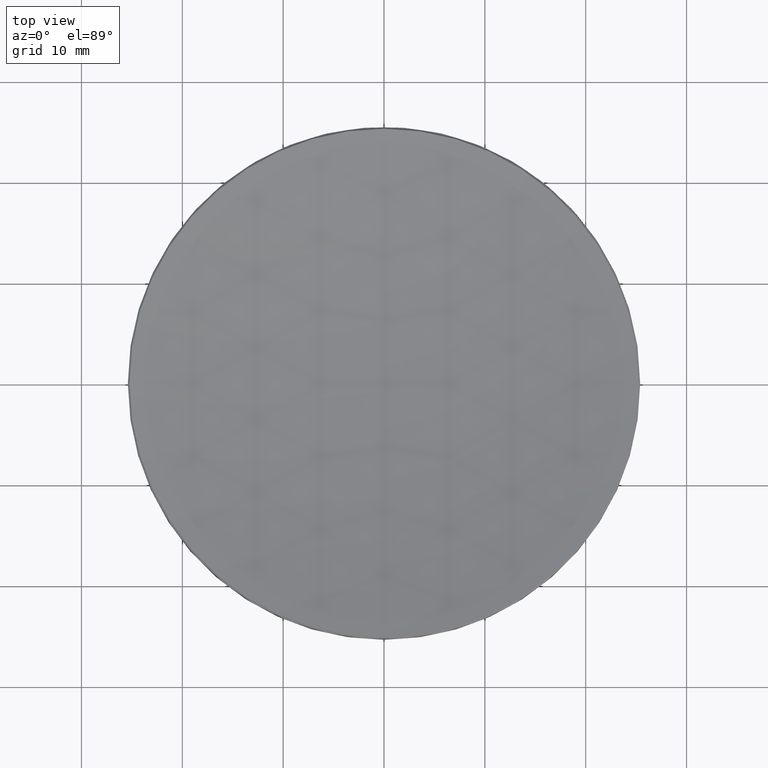
[diagram: clean part render]
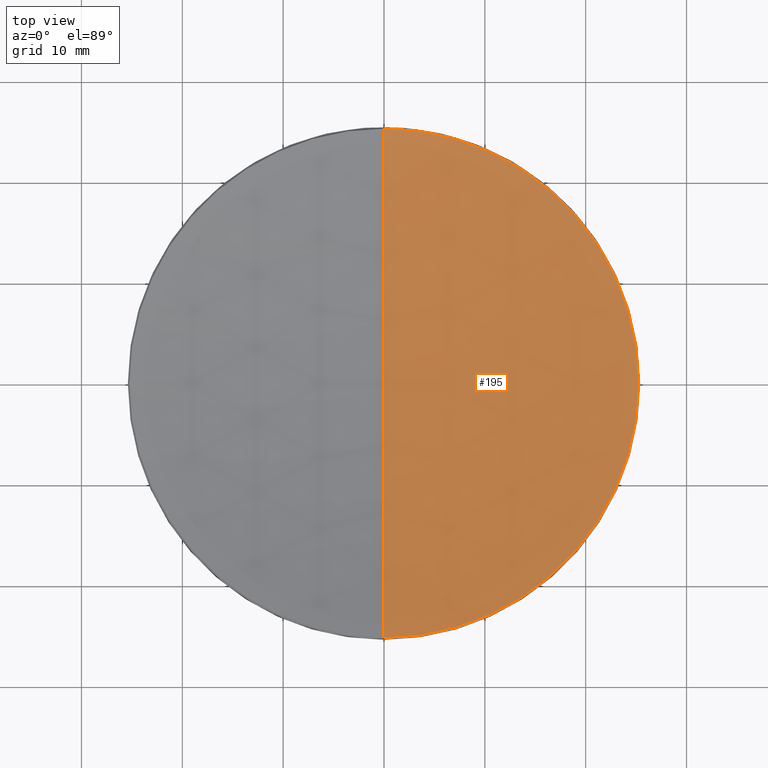
[diagram: same view with one face highlighted and labeled with its STEP entity id]
A machine part, top view. The second image highlights one B-rep face of the part: STEP entity #195.
In plain terms, the highlighted spherical surface has radius 119.32 mm.
Its self-contained STEP definition (entity closure, byte-faithful):
#11 = ORIENTED_EDGE ( 'NONE', *, *, #257, .T. ) ;
#12 = DIRECTION ( 'NONE',  ( -0.000000000000000000, -0.000000000000000000, 1.000000000000000000 ) ) ;
#23 = AXIS2_PLACEMENT_3D ( 'NONE', #197, #134, #281 ) ;
#33 = DIRECTION ( 'NONE',  ( -1.224646799147353207E-16, -1.000000000000000000, 0.000000000000000000 ) ) ;
#42 = EDGE_CURVE ( 'NONE', #160, #138, #260, .T. ) ;
#45 = CIRCLE ( 'NONE', #147, 25.23567881563414517 ) ;
#66 = CARTESIAN_POINT ( 'NONE',  ( 0.000000000000000000, 7.306242803713110362E-15, 12.96517229905352941 ) ) ;
#67 = AXIS2_PLACEMENT_3D ( 'NONE', #144, #227, #33 ) ;
#72 = DIRECTION ( 'NONE',  ( 1.000000000000000000, 0.000000000000000000, 0.000000000000000000 ) ) ;
#78 = SPHERICAL_SURFACE ( 'NONE', #242, 119.3200000000000074 ) ;
#79 = DIRECTION ( 'NONE',  ( -1.000000000000000000, 0.000000000000000000, 0.000000000000000000 ) ) ;
#88 = CARTESIAN_POINT ( 'NONE',  ( -3.090479328587706859E-15, -25.23567881563418425, 15.66432118436585164 ) ) ;
#93 = FACE_OUTER_BOUND ( 'NONE', #188, .T. ) ;
#96 = CARTESIAN_POINT ( 'NONE',  ( 0.000000000000000000, 0.000000000000000000, 15.66432118436585164 ) ) ;
#99 = DIRECTION ( 'NONE',  ( -0.000000000000000000, -0.000000000000000000, 1.000000000000000000 ) ) ;
#118 = ORIENTED_EDGE ( 'NONE', *, *, #236, .T. ) ;
#134 = DIRECTION ( 'NONE',  ( 1.000000000000000000, 0.000000000000000000, 0.000000000000000000 ) ) ;
#137 = EDGE_CURVE ( 'NONE', #160, #222, #196, .T. ) ;
#138 = VERTEX_POINT ( 'NONE', #88 ) ;
#144 = CARTESIAN_POINT ( 'NONE',  ( 0.000000000000000000, 0.000000000000000000, 132.2851722990535279 ) ) ;
#147 = AXIS2_PLACEMENT_3D ( 'NONE', #96, #12, #270 ) ;
#159 = VERTEX_POINT ( 'NONE', #258 ) ;
#160 = VERTEX_POINT ( 'NONE', #66 ) ;
#165 = DIRECTION ( 'NONE',  ( 0.000000000000000000, 1.000000000000000000, 0.000000000000000000 ) ) ;
#188 = EDGE_LOOP ( 'NONE', ( #210, #243, #118, #11 ) ) ;
#195 = ADVANCED_FACE ( 'NONE', ( #93 ), #78, .F. ) ;
#196 = CIRCLE ( 'NONE', #23, 119.3200000000000074 ) ;
#197 = CARTESIAN_POINT ( 'NONE',  ( 0.000000000000000000, 0.000000000000000000, 132.2851722990535279 ) ) ;
#204 = CARTESIAN_POINT ( 'NONE',  ( 0.000000000000000000, 0.000000000000000000, 15.66432118436585164 ) ) ;
#206 = CARTESIAN_POINT ( 'NONE',  ( 0.000000000000000000, 25.23567881563418425, 15.66432118436585164 ) ) ;
#210 = ORIENTED_EDGE ( 'NONE', *, *, #137, .F. ) ;
#211 = CARTESIAN_POINT ( 'NONE',  ( 0.000000000000000000, 0.000000000000000000, 132.2851722990535279 ) ) ;
#222 = VERTEX_POINT ( 'NONE', #206 ) ;
#227 = DIRECTION ( 'NONE',  ( -1.000000000000000000, 1.224646799147353207E-16, 0.000000000000000000 ) ) ;
#236 = EDGE_CURVE ( 'NONE', #138, #159, #45, .T. ) ;
#238 = CIRCLE ( 'NONE', #251, 25.23567881563414517 ) ;
#242 = AXIS2_PLACEMENT_3D ( 'NONE', #211, #79, #165 ) ;
#243 = ORIENTED_EDGE ( 'NONE', *, *, #42, .T. ) ;
#251 = AXIS2_PLACEMENT_3D ( 'NONE', #204, #99, #72 ) ;
#257 = EDGE_CURVE ( 'NONE', #159, #222, #238, .T. ) ;
#258 = CARTESIAN_POINT ( 'NONE',  ( 25.23567881563414872, 3.100541099210989890E-15, 15.66432118436585164 ) ) ;
#260 = CIRCLE ( 'NONE', #67, 119.3200000000000074 ) ;
#270 = DIRECTION ( 'NONE',  ( 1.000000000000000000, 0.000000000000000000, 0.000000000000000000 ) ) ;
#281 = DIRECTION ( 'NONE',  ( 0.000000000000000000, 0.000000000000000000, -1.000000000000000000 ) ) ;